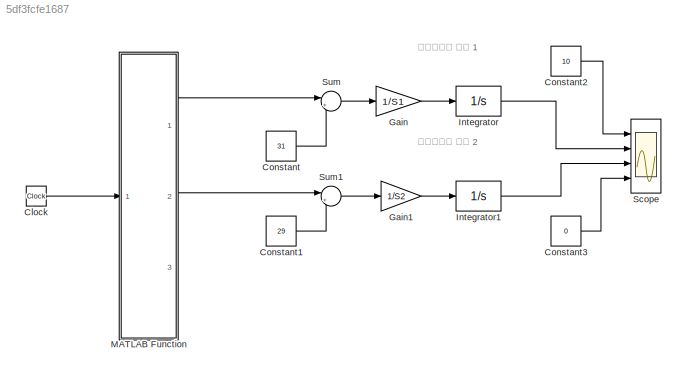
MODEL slx_5df3fcfe1687
KIND model
CONFIG AbsTol = auto
CONFIG FixedStep = auto
CONFIG InitFcn = S1=20;\nS2=20; \nh1=5;\nh2=5;
CONFIG MaxStep = auto
CONFIG MinStep = auto
CONFIG RelTol = 1e-3
CONFIG SampleTimeConstraint = Unconstrained
CONFIG Solver = VariableStepAuto
CONFIG SolverMode = Auto
CONFIG SolverName = VariableStepAuto
CONFIG StartTime = 0.0
CONFIG StopTime = 10.0
BLOCK [Clock] Clock
BLOCK [Constant] Constant
  Value = 31
BLOCK [Constant] Constant1
  Value = 29
BLOCK [Constant] Constant2
  Value = 10
BLOCK [Constant] Constant3
  Value = 0
BLOCK [Gain] Gain
  Gain = 1/S1
  OutDataTypeStr = Inherit: Inherit via internal rule
  ParamDataTypeStr = Inherit: Inherit via internal rule
  SaturateOnIntegerOverflow = off
BLOCK [Gain] Gain1
  Gain = 1/S2
  OutDataTypeStr = Inherit: Inherit via internal rule
  ParamDataTypeStr = Inherit: Inherit via internal rule
  SaturateOnIntegerOverflow = off
BLOCK [Integrator] Integrator
  InitialCondition = h1
  Ports = [1, 1]
BLOCK [Integrator] Integrator1
  InitialCondition = h2
  Ports = [1, 1]
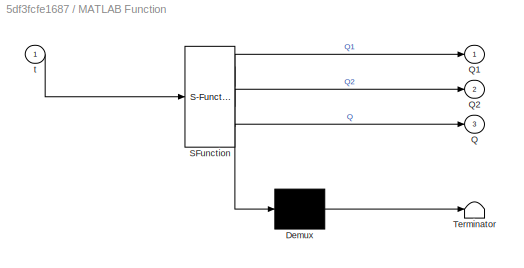
BLOCK [SubSystem] MATLAB Function
  ErrorFcn = Stateflow.Translate.translate
  PermitHierarchicalResolution = ExplicitOnly
  Ports = [1, 3]
  RequestExecContextInheritance = off
  SFBlockType = MATLAB Function
  TreatAsAtomicUnit = on
  Variant = off
BLOCK [Demux] MATLAB Function/ Demux 
  Outputs = 1
  Ports = [1, 1]
BLOCK [S-Function] MATLAB Function/ SFunction 
  EnableBusSupport = on
  FunctionName = sf_sfun
  PortCounts = [1 4]
  Ports = [1, 4]
  SFunctionDeploymentMode = off
  Tag = Stateflow S-Function A_Simple_NoControl 2
BLOCK [Terminator] MATLAB Function/ Terminator 
BLOCK [Outport] MATLAB Function/Q
  IconDisplay = Port number
  Port = 3
BLOCK [Outport] MATLAB Function/Q1
  IconDisplay = Port number
BLOCK [Outport] MATLAB Function/Q2
  IconDisplay = Port number
  Port = 2
BLOCK [Inport] MATLAB Function/t
  IconDisplay = Port number
BLOCK [Scope] Scope
  NumInputPorts = 4
  Ports = [4]
  ScopeSpecificationString = Simulink.scopes.TimeScopeBlockCfg('CurrentConfiguration', extmgr.ConfigurationSet(extmgr.Configuration('Core','General UI',true),extmgr.Configuration('Core','Source UI',true),extmgr.Configuration('Sources','WiredSimulink',true),extmgr.Configuration('Visuals','Time Domain',true,'SerializedDisplays',{struct('MinYLimReal','-1.25','MaxYLimReal','11.25','YLabelReal','','MinYLimMag','0.00000','MaxYLimMa...<+1450ch>
BLOCK [Sum] Sum
  IconShape = round
  InputSameDT = off
  Inputs = |+-
  OutDataTypeStr = Inherit: Inherit via internal rule
  Ports = [2, 1]
  SaturateOnIntegerOverflow = off
BLOCK [Sum] Sum1
  IconShape = round
  InputSameDT = off
  Inputs = |+-
  OutDataTypeStr = Inherit: Inherit via internal rule
  Ports = [2, 1]
  SaturateOnIntegerOverflow = off
ANNOTATION (root): تانکر آب 1
ANNOTATION (root): تانکر آب 2
LINE Clock:1 -> MATLAB Function:1
LINE Constant1:1 -> Sum1:2
LINE Constant2:1 -> Scope:1
LINE Constant3:1 -> Scope:4
LINE Constant:1 -> Sum:2
LINE Gain1:1 -> Integrator1:1
LINE Gain:1 -> Integrator:1
LINE Integrator1:1 -> Scope:3
LINE Integrator:1 -> Scope:2
LINE MATLAB Function:1 -> Sum:1
LINE MATLAB Function:2 -> Sum1:1
LINE Sum1:1 -> Gain1:1
LINE Sum:1 -> Gain:1
CHART MATLAB Function states=1 transitions=1
  STATE_LABEL 'eML_blk_kernel()'
  STATE_LABEL 'SCRIPT:\nfunction [Q1,Q2,Q] = fcn(t)\n%#codegen\n\nQ1=30;\nQ2=30;\n\nQ=Q1+Q2;'
